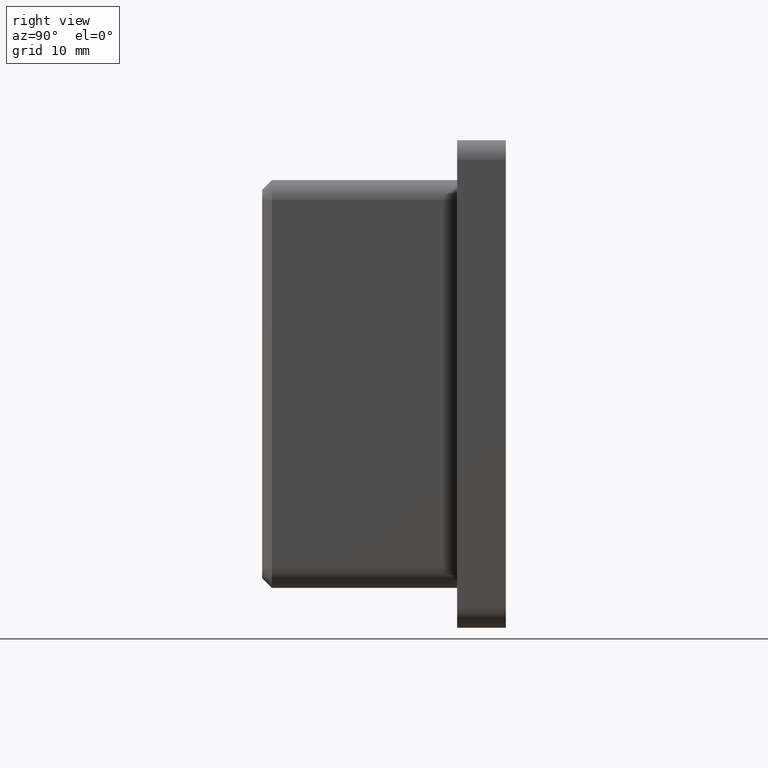
[diagram: clean part render]
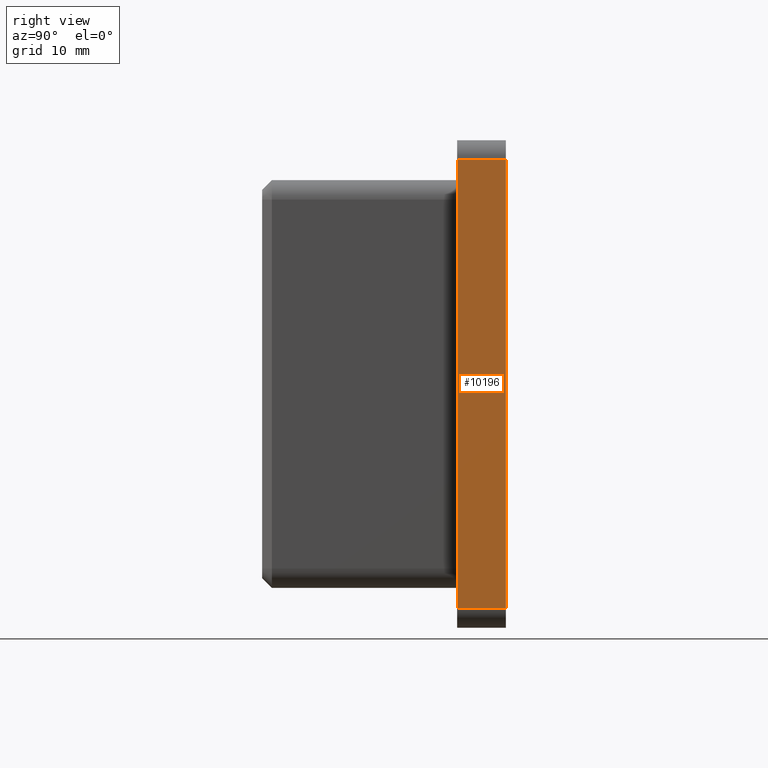
[diagram: same view with one face highlighted and labeled with its STEP entity id]
A machine part, right view. The second image highlights one B-rep face of the part: STEP entity #10196.
In plain terms, the highlighted planar face has unit normal (-1, 0, 0).
Its self-contained STEP definition (entity closure, byte-faithful):
#323 = CARTESIAN_POINT ( 'NONE',  ( 24.99999999999999600, 5.000000000000000000, -24.99999999999999600 ) ) ;
#401 = LINE ( 'NONE', #11419, #13125 ) ;
#495 = CARTESIAN_POINT ( 'NONE',  ( 24.99999999999999600, 0.0000000000000000000, -24.99999999999999600 ) ) ;
#548 = EDGE_CURVE ( 'NONE', #9064, #9407, #14042, .T. ) ;
#1233 = LINE ( 'NONE', #495, #13563 ) ;
#1945 = CARTESIAN_POINT ( 'NONE',  ( 24.99999999999999600, 5.000000000000000000, -24.99999999999999600 ) ) ;
#2541 = FACE_OUTER_BOUND ( 'NONE', #3283, .T. ) ;
#2700 = CARTESIAN_POINT ( 'NONE',  ( 25.00000000000000400, 0.0000000000000000000, 23.00000000000000400 ) ) ;
#2860 = VECTOR ( 'NONE', #10232, 1000.000000000000000 ) ;
#2907 = DIRECTION ( 'NONE',  ( -1.000000000000000000, 0.0000000000000000000, 1.387778780781445700E-016 ) ) ;
#3087 = DIRECTION ( 'NONE',  ( -1.387778780781445700E-016, -0.0000000000000000000, -1.000000000000000000 ) ) ;
#3283 = EDGE_LOOP ( 'NONE', ( #7364, #6031, #8645, #5022 ) ) ;
#4284 = VECTOR ( 'NONE', #15562, 1000.000000000000000 ) ;
#5022 = ORIENTED_EDGE ( 'NONE', *, *, #12770, .T. ) ;
#5277 = CARTESIAN_POINT ( 'NONE',  ( 24.99999999999999600, 5.000000000000000000, -23.00000000000000000 ) ) ;
#5499 = CARTESIAN_POINT ( 'NONE',  ( 24.99999999999999600, 5.000000000000000000, -23.00000000000000000 ) ) ;
#5830 = LINE ( 'NONE', #1945, #4284 ) ;
#6031 = ORIENTED_EDGE ( 'NONE', *, *, #548, .T. ) ;
#6907 = EDGE_CURVE ( 'NONE', #13288, #9064, #1233, .T. ) ;
#7176 = VERTEX_POINT ( 'NONE', #10414 ) ;
#7364 = ORIENTED_EDGE ( 'NONE', *, *, #6907, .T. ) ;
#8645 = ORIENTED_EDGE ( 'NONE', *, *, #12556, .F. ) ;
#8912 = DIRECTION ( 'NONE',  ( 1.387778780781445700E-016, 0.0000000000000000000, 1.000000000000000000 ) ) ;
#9064 = VERTEX_POINT ( 'NONE', #9790 ) ;
#9407 = VERTEX_POINT ( 'NONE', #5499 ) ;
#9790 = CARTESIAN_POINT ( 'NONE',  ( 24.99999999999999600, 0.0000000000000000000, -23.00000000000000000 ) ) ;
#10196 = ADVANCED_FACE ( 'NONE', ( #2541 ), #12650, .F. ) ;
#10232 = DIRECTION ( 'NONE',  ( -0.0000000000000000000, 1.000000000000000000, -0.0000000000000000000 ) ) ;
#10235 = DIRECTION ( 'NONE',  ( 0.0000000000000000000, -1.000000000000000000, 0.0000000000000000000 ) ) ;
#10414 = CARTESIAN_POINT ( 'NONE',  ( 25.00000000000000400, 5.000000000000000000, 23.00000000000000400 ) ) ;
#11419 = CARTESIAN_POINT ( 'NONE',  ( 25.00000000000000400, 5.000000000000000000, 23.00000000000000400 ) ) ;
#12556 = EDGE_CURVE ( 'NONE', #7176, #9407, #5830, .T. ) ;
#12650 = PLANE ( 'NONE',  #14477 ) ;
#12770 = EDGE_CURVE ( 'NONE', #7176, #13288, #401, .T. ) ;
#13125 = VECTOR ( 'NONE', #10235, 1000.000000000000000 ) ;
#13288 = VERTEX_POINT ( 'NONE', #2700 ) ;
#13563 = VECTOR ( 'NONE', #3087, 1000.000000000000000 ) ;
#14042 = LINE ( 'NONE', #5277, #2860 ) ;
#14477 = AXIS2_PLACEMENT_3D ( 'NONE', #323, #2907, #8912 ) ;
#15562 = DIRECTION ( 'NONE',  ( -1.387778780781445700E-016, -0.0000000000000000000, -1.000000000000000000 ) ) ;